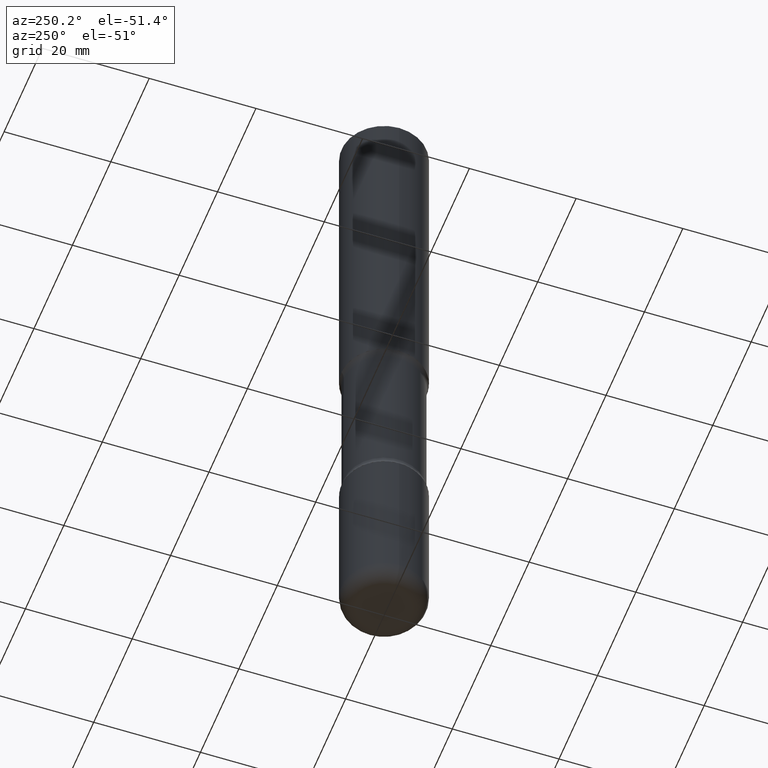
[diagram: clean part render]
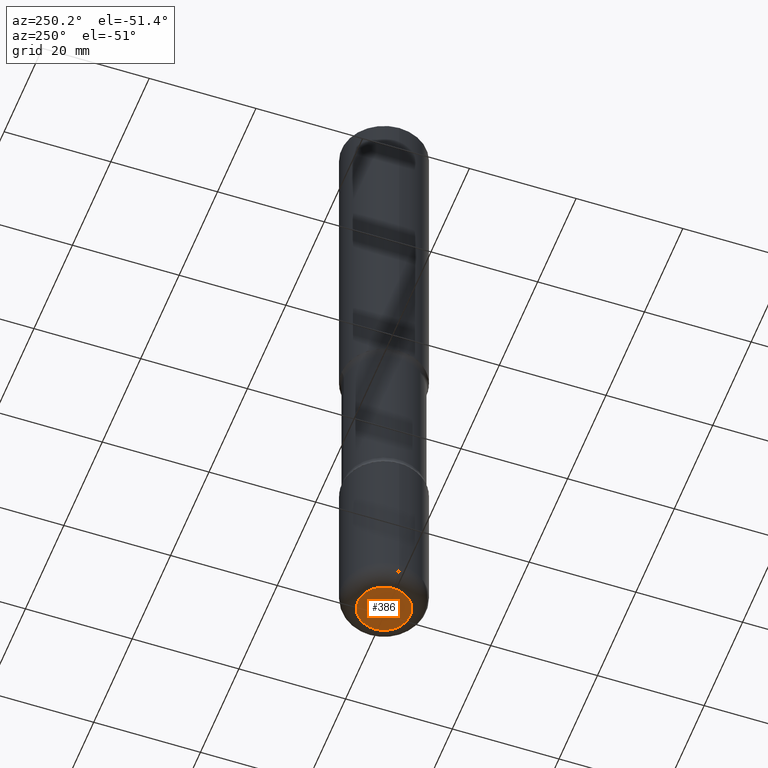
[diagram: same view with one face highlighted and labeled with its STEP entity id]
A machine part, auxiliary view. The second image highlights one B-rep face of the part: STEP entity #386.
In plain terms, the highlighted planar face has unit normal (0, -0, -1).
Its self-contained STEP definition (entity closure, byte-faithful):
#29 = DIRECTION ( 'NONE',  ( -2.445468806185136597E-29, 3.491481338843145583E-15, 1.000000000000000000 ) ) ;
#36 = DIRECTION ( 'NONE',  ( 1.000000000000000000, -6.982962677686258822E-15, 0.000000000000000000 ) ) ;
#39 = CARTESIAN_POINT ( 'NONE',  ( -0.1925000000000002820, -1.545379740609088424E-14, -5.000000000000000000 ) ) ;
#87 = AXIS2_PLACEMENT_3D ( 'NONE', #191, #269, #405 ) ;
#94 = VERTEX_POINT ( 'NONE', #39 ) ;
#106 = CIRCLE ( 'NONE', #500, 0.1925000000000002820 ) ;
#183 = PLANE ( 'NONE',  #336 ) ;
#191 = CARTESIAN_POINT ( 'NONE',  ( 1.222734403092568523E-28, -1.745740669421572989E-14, -5.000000000000000000 ) ) ;
#240 = EDGE_CURVE ( 'NONE', #94, #444, #106, .T. ) ;
#263 = ORIENTED_EDGE ( 'NONE', *, *, #558, .F. ) ;
#269 = DIRECTION ( 'NONE',  ( -2.445468806185136597E-29, 3.491481338843145583E-15, 1.000000000000000000 ) ) ;
#302 = DIRECTION ( 'NONE',  ( -1.000000000000000000, 6.982962677686265922E-15, -4.876176775795935793E-29 ) ) ;
#303 = ORIENTED_EDGE ( 'NONE', *, *, #240, .F. ) ;
#336 = AXIS2_PLACEMENT_3D ( 'NONE', #436, #387, #302 ) ;
#365 = CIRCLE ( 'NONE', #87, 0.1925000000000002820 ) ;
#386 = ADVANCED_FACE ( 'NONE', ( #523 ), #183, .T. ) ;
#387 = DIRECTION ( 'NONE',  ( 2.438088387897960049E-29, -3.491481338843145188E-15, -1.000000000000000000 ) ) ;
#405 = DIRECTION ( 'NONE',  ( 1.000000000000000000, -6.982962677686258822E-15, 0.000000000000000000 ) ) ;
#436 = CARTESIAN_POINT ( 'NONE',  ( 1.222734403092568523E-28, -1.745740669421572989E-14, -5.000000000000000000 ) ) ;
#444 = VERTEX_POINT ( 'NONE', #517 ) ;
#500 = AXIS2_PLACEMENT_3D ( 'NONE', #509, #29, #36 ) ;
#509 = CARTESIAN_POINT ( 'NONE',  ( 1.222734403092568523E-28, -1.745740669421572989E-14, -5.000000000000000000 ) ) ;
#517 = CARTESIAN_POINT ( 'NONE',  ( 0.1925000000000002820, -1.880162700967033654E-14, -5.000000000000000000 ) ) ;
#520 = EDGE_LOOP ( 'NONE', ( #263, #303 ) ) ;
#523 = FACE_OUTER_BOUND ( 'NONE', #520, .T. ) ;
#558 = EDGE_CURVE ( 'NONE', #444, #94, #365, .T. ) ;